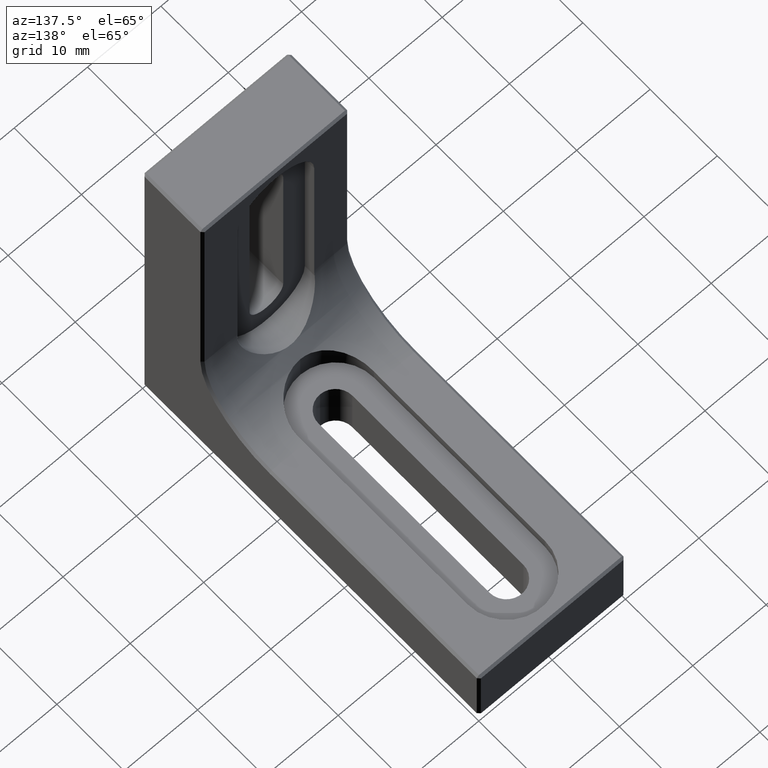
[diagram: clean part render]
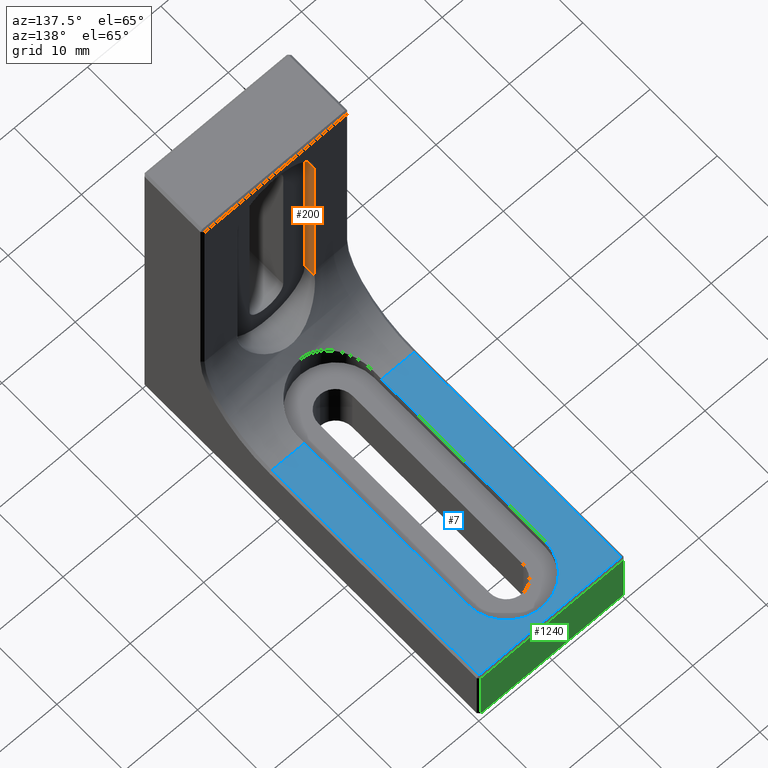
[diagram: same view with three faces highlighted in distinct colors, each labeled with its STEP entity id]
A machine part, auxiliary view with three faces highlighted in distinct colors.
Their STEP definitions:

[orange] entity #200 — the highlighted planar face has unit normal (-1, 0, 0).
#36 = VERTEX_POINT ( 'NONE', #1462 ) ;
#200 = ADVANCED_FACE ( 'NONE', ( #493 ), #1058, .F. ) ;
#219 = CARTESIAN_POINT ( 'NONE',  ( -5.250000000000000000, 7.500000000000000000, 17.78999999999999204 ) ) ;
#355 = DIRECTION ( 'NONE',  ( 1.365923996832131609E-16, 0.000000000000000000, 1.000000000000000000 ) ) ;
#385 = EDGE_LOOP ( 'NONE', ( #1031, #847, #672, #849, #1210 ) ) ;
#389 = DIRECTION ( 'NONE',  ( -0.000000000000000000, 1.000000000000000000, -0.000000000000000000 ) ) ;
#394 = CARTESIAN_POINT ( 'NONE',  ( -5.249999999999999112, 8.900000000000000355, 18.89999999999999503 ) ) ;
#447 = VECTOR ( 'NONE', #389, 1000.000000000000000 ) ;
#467 = CARTESIAN_POINT ( 'NONE',  ( -5.250000000000000000, 7.500000000000000000, 17.78999999999999204 ) ) ;
#469 = EDGE_CURVE ( 'NONE', #1029, #879, #1439, .T. ) ;
#493 = FACE_OUTER_BOUND ( 'NONE', #385, .T. ) ;
#496 = LINE ( 'NONE', #467, #827 ) ;
#513 = CARTESIAN_POINT ( 'NONE',  ( -5.249999999999997335, 8.899999999999995026, 43.18999999999999062 ) ) ;
#536 = EDGE_CURVE ( 'NONE', #879, #1291, #1346, .T. ) ;
#543 = DIRECTION ( 'NONE',  ( -1.365923996832131609E-16, 1.266221515311537557E-16, -1.000000000000000000 ) ) ;
#550 = DIRECTION ( 'NONE',  ( 1.734723475976807341E-16, 3.469446951953614978E-15, 1.000000000000000000 ) ) ;
#672 = ORIENTED_EDGE ( 'NONE', *, *, #1756, .T. ) ;
#692 = CARTESIAN_POINT ( 'NONE',  ( -5.249999999999999112, 18.89999999999999858, 18.89999999999999503 ) ) ;
#714 = VECTOR ( 'NONE', #543, 1000.000000000000000 ) ;
#747 = VERTEX_POINT ( 'NONE', #219 ) ;
#748 = CARTESIAN_POINT ( 'NONE',  ( -5.249999999999997335, 7.500000000000000000, 43.18999999999999062 ) ) ;
#764 = EDGE_CURVE ( 'NONE', #747, #1029, #496, .T. ) ;
#827 = VECTOR ( 'NONE', #887, 1000.000000000000000 ) ;
#847 = ORIENTED_EDGE ( 'NONE', *, *, #764, .F. ) ;
#849 = ORIENTED_EDGE ( 'NONE', *, *, #1147, .F. ) ;
#858 = CARTESIAN_POINT ( 'NONE',  ( -5.249999999999997335, 7.500000000000000000, 43.18999999999999062 ) ) ;
#879 = VERTEX_POINT ( 'NONE', #513 ) ;
#887 = DIRECTION ( 'NONE',  ( 1.365923996832131609E-16, 0.000000000000000000, 1.000000000000000000 ) ) ;
#935 = CARTESIAN_POINT ( 'NONE',  ( -5.250000000000000000, 7.500000000000000000, 17.78999999999999204 ) ) ;
#998 = CIRCLE ( 'NONE', #1418, 9.999999999999998224 ) ;
#1029 = VERTEX_POINT ( 'NONE', #858 ) ;
#1031 = ORIENTED_EDGE ( 'NONE', *, *, #469, .F. ) ;
#1058 = PLANE ( 'NONE',  #1757 ) ;
#1147 = EDGE_CURVE ( 'NONE', #1291, #36, #998, .T. ) ;
#1166 = DIRECTION ( 'NONE',  ( -0.000000000000000000, 1.000000000000000000, -0.000000000000000000 ) ) ;
#1210 = ORIENTED_EDGE ( 'NONE', *, *, #536, .F. ) ;
#1222 = LINE ( 'NONE', #1382, #447 ) ;
#1255 = DIRECTION ( 'NONE',  ( 1.000000000000000000, -0.000000000000000000, -1.365923996832131609E-16 ) ) ;
#1291 = VERTEX_POINT ( 'NONE', #394 ) ;
#1346 = LINE ( 'NONE', #1484, #714 ) ;
#1382 = CARTESIAN_POINT ( 'NONE',  ( -5.250000000000000000, 7.500000000000000000, 17.78999999999999204 ) ) ;
#1418 = AXIS2_PLACEMENT_3D ( 'NONE', #692, #1255, #550 ) ;
#1439 = LINE ( 'NONE', #748, #1461 ) ;
#1461 = VECTOR ( 'NONE', #1166, 1000.000000000000000 ) ;
#1462 = CARTESIAN_POINT ( 'NONE',  ( -5.249999999999999112, 8.961795936890810665, 17.78999999999999204 ) ) ;
#1484 = CARTESIAN_POINT ( 'NONE',  ( -5.250000000000000888, 8.899999999999998579, 8.899999999999996803 ) ) ;
#1505 = DIRECTION ( 'NONE',  ( -1.000000000000000000, 0.000000000000000000, 1.365923996832131609E-16 ) ) ;
#1756 = EDGE_CURVE ( 'NONE', #747, #36, #1222, .T. ) ;
#1757 = AXIS2_PLACEMENT_3D ( 'NONE', #935, #1505, #355 ) ;

[blue] entity #7 — the highlighted planar face has unit normal (0, 0, -1).
#7 = ADVANCED_FACE ( 'NONE', ( #758 ), #624, .F. ) ;
#12 = CARTESIAN_POINT ( 'NONE',  ( 5.250000000000004441, 50.00000000000000000, 8.900000000000000355 ) ) ;
#49 = DIRECTION ( 'NONE',  ( 0.000000000000000000, 1.000000000000000000, 1.266221515311537804E-16 ) ) ;
#54 = VERTEX_POINT ( 'NONE', #1470 ) ;
#77 = EDGE_CURVE ( 'NONE', #995, #1153, #91, .T. ) ;
#91 = LINE ( 'NONE', #1080, #1502 ) ;
#103 = DIRECTION ( 'NONE',  ( 0.000000000000000000, 1.000000000000000000, 0.000000000000000000 ) ) ;
#118 = LINE ( 'NONE', #1073, #631 ) ;
#125 = LINE ( 'NONE', #565, #1397 ) ;
#187 = ORIENTED_EDGE ( 'NONE', *, *, #918, .F. ) ;
#229 = CARTESIAN_POINT ( 'NONE',  ( 9.699999999999999289, 50.00000000000000000, 8.900000000000000355 ) ) ;
#278 = EDGE_CURVE ( 'NONE', #722, #626, #296, .T. ) ;
#279 = EDGE_CURVE ( 'NONE', #995, #1654, #1796, .T. ) ;
#296 = LINE ( 'NONE', #828, #1054 ) ;
#370 = CARTESIAN_POINT ( 'NONE',  ( 5.250000000000000000, 18.89999999999999858, 8.899999999999996803 ) ) ;
#387 = VERTEX_POINT ( 'NONE', #1741 ) ;
#395 = CIRCLE ( 'NONE', #598, 5.249999999999997335 ) ;
#400 = CARTESIAN_POINT ( 'NONE',  ( -5.249999999999997335, 43.18999999999999773, 8.899999999999998579 ) ) ;
#476 = ORIENTED_EDGE ( 'NONE', *, *, #1567, .T. ) ;
#495 = ORIENTED_EDGE ( 'NONE', *, *, #967, .T. ) ;
#539 = VECTOR ( 'NONE', #1642, 1000.000000000000000 ) ;
#565 = CARTESIAN_POINT ( 'NONE',  ( -5.249999999999994671, 50.00000000000000000, 8.900000000000000355 ) ) ;
#573 = DIRECTION ( 'NONE',  ( 1.365923996832131609E-16, 1.000000000000000000, 1.266221515311537804E-16 ) ) ;
#598 = AXIS2_PLACEMENT_3D ( 'NONE', #1526, #646, #103 ) ;
#623 = CARTESIAN_POINT ( 'NONE',  ( 10.00000000000000000, 49.70000000000000284, 8.900000000000000355 ) ) ;
#624 = PLANE ( 'NONE',  #1786 ) ;
#626 = VERTEX_POINT ( 'NONE', #910 ) ;
#629 = VERTEX_POINT ( 'NONE', #400 ) ;
#631 = VECTOR ( 'NONE', #673, 1000.000000000000000 ) ;
#646 = DIRECTION ( 'NONE',  ( -0.000000000000000000, -1.266221515311537804E-16, 1.000000000000000000 ) ) ;
#657 = VECTOR ( 'NONE', #1176, 1000.000000000000000 ) ;
#673 = DIRECTION ( 'NONE',  ( 0.000000000000000000, -1.000000000000000000, -1.266221515311537804E-16 ) ) ;
#722 = VERTEX_POINT ( 'NONE', #1145 ) ;
#751 = CARTESIAN_POINT ( 'NONE',  ( 9.699999999999999289, 18.89999999999999858, 8.899999999999996803 ) ) ;
#758 = FACE_OUTER_BOUND ( 'NONE', #977, .T. ) ;
#766 = LINE ( 'NONE', #623, #657 ) ;
#828 = CARTESIAN_POINT ( 'NONE',  ( 10.00000000000000000, 18.89999999999999858, 8.899999999999996803 ) ) ;
#870 = VECTOR ( 'NONE', #573, 1000.000000000000000 ) ;
#910 = CARTESIAN_POINT ( 'NONE',  ( -5.249999999999999112, 18.89999999999999858, 8.899999999999996803 ) ) ;
#918 = EDGE_CURVE ( 'NONE', #1654, #629, #395, .T. ) ;
#923 = CARTESIAN_POINT ( 'NONE',  ( 5.250000000000003553, 43.18999999999999773, 8.899999999999998579 ) ) ;
#934 = EDGE_CURVE ( 'NONE', #1153, #387, #1368, .T. ) ;
#967 = EDGE_CURVE ( 'NONE', #54, #722, #118, .T. ) ;
#977 = EDGE_LOOP ( 'NONE', ( #476, #495, #1393, #1014, #187, #1281, #1746, #1082 ) ) ;
#995 = VERTEX_POINT ( 'NONE', #370 ) ;
#1014 = ORIENTED_EDGE ( 'NONE', *, *, #1446, .F. ) ;
#1054 = VECTOR ( 'NONE', #1402, 1000.000000000000000 ) ;
#1073 = CARTESIAN_POINT ( 'NONE',  ( -9.699999999999999289, 50.00000000000000000, 8.900000000000000355 ) ) ;
#1080 = CARTESIAN_POINT ( 'NONE',  ( 10.00000000000000000, 18.89999999999999858, 8.899999999999996803 ) ) ;
#1082 = ORIENTED_EDGE ( 'NONE', *, *, #934, .T. ) ;
#1087 = DIRECTION ( 'NONE',  ( 1.000000000000000000, -0.000000000000000000, -0.000000000000000000 ) ) ;
#1121 = DIRECTION ( 'NONE',  ( -1.365923996832131609E-16, -1.000000000000000000, -1.266221515311537804E-16 ) ) ;
#1145 = CARTESIAN_POINT ( 'NONE',  ( -9.699999999999999289, 18.89999999999999858, 8.899999999999996803 ) ) ;
#1153 = VERTEX_POINT ( 'NONE', #751 ) ;
#1176 = DIRECTION ( 'NONE',  ( -1.000000000000000000, 0.000000000000000000, 0.000000000000000000 ) ) ;
#1187 = CARTESIAN_POINT ( 'NONE',  ( 10.00000000000000000, 50.00000000000000000, 8.900000000000000355 ) ) ;
#1281 = ORIENTED_EDGE ( 'NONE', *, *, #279, .F. ) ;
#1317 = DIRECTION ( 'NONE',  ( 0.000000000000000000, 1.266221515311537804E-16, -1.000000000000000000 ) ) ;
#1368 = LINE ( 'NONE', #229, #539 ) ;
#1393 = ORIENTED_EDGE ( 'NONE', *, *, #278, .T. ) ;
#1397 = VECTOR ( 'NONE', #1121, 1000.000000000000000 ) ;
#1402 = DIRECTION ( 'NONE',  ( 1.000000000000000000, -0.000000000000000000, -0.000000000000000000 ) ) ;
#1446 = EDGE_CURVE ( 'NONE', #629, #626, #125, .T. ) ;
#1470 = CARTESIAN_POINT ( 'NONE',  ( -9.699999999999999289, 49.70000000000000284, 8.900000000000000355 ) ) ;
#1502 = VECTOR ( 'NONE', #1087, 1000.000000000000000 ) ;
#1526 = CARTESIAN_POINT ( 'NONE',  ( 2.975891721928067571E-15, 43.18999999999999773, 8.899999999999998579 ) ) ;
#1567 = EDGE_CURVE ( 'NONE', #387, #54, #766, .T. ) ;
#1642 = DIRECTION ( 'NONE',  ( 0.000000000000000000, 1.000000000000000000, 1.266221515311537804E-16 ) ) ;
#1654 = VERTEX_POINT ( 'NONE', #923 ) ;
#1741 = CARTESIAN_POINT ( 'NONE',  ( 9.699999999999999289, 49.70000000000000284, 8.900000000000000355 ) ) ;
#1746 = ORIENTED_EDGE ( 'NONE', *, *, #77, .T. ) ;
#1786 = AXIS2_PLACEMENT_3D ( 'NONE', #1187, #1317, #49 ) ;
#1796 = LINE ( 'NONE', #12, #870 ) ;

[green] entity #1240 — the highlighted planar face has unit normal (0, -1, 0).
#10 = VECTOR ( 'NONE', #1813, 1000.000000000000000 ) ;
#47 = CARTESIAN_POINT ( 'NONE',  ( 9.699999999999999289, 50.00000000000000000, 0.000000000000000000 ) ) ;
#60 = DIRECTION ( 'NONE',  ( 0.000000000000000000, -1.000000000000000000, 0.000000000000000000 ) ) ;
#72 = DIRECTION ( 'NONE',  ( 1.000000000000000000, 0.000000000000000000, 0.000000000000000000 ) ) ;
#87 = CARTESIAN_POINT ( 'NONE',  ( 9.699999999999999289, 50.00000000000000000, 0.3000000000000017097 ) ) ;
#161 = VECTOR ( 'NONE', #1235, 1000.000000000000000 ) ;
#170 = EDGE_CURVE ( 'NONE', #406, #1097, #240, .T. ) ;
#240 = LINE ( 'NONE', #516, #1321 ) ;
#386 = LINE ( 'NONE', #822, #161 ) ;
#406 = VERTEX_POINT ( 'NONE', #1017 ) ;
#474 = ORIENTED_EDGE ( 'NONE', *, *, #930, .T. ) ;
#516 = CARTESIAN_POINT ( 'NONE',  ( 10.00000000000000000, 50.00000000000000000, 8.599999999999997868 ) ) ;
#548 = EDGE_CURVE ( 'NONE', #1748, #1105, #922, .T. ) ;
#625 = DIRECTION ( 'NONE',  ( 0.000000000000000000, -0.000000000000000000, -1.000000000000000000 ) ) ;
#654 = ORIENTED_EDGE ( 'NONE', *, *, #1617, .T. ) ;
#699 = CARTESIAN_POINT ( 'NONE',  ( 9.699999999999999289, 50.00000000000000000, 8.599999999999997868 ) ) ;
#822 = CARTESIAN_POINT ( 'NONE',  ( -9.699999999999999289, 50.00000000000000000, 0.000000000000000000 ) ) ;
#865 = CARTESIAN_POINT ( 'NONE',  ( -9.699999999999999289, 50.00000000000000000, 0.3000000000000017097 ) ) ;
#922 = LINE ( 'NONE', #1246, #10 ) ;
#930 = EDGE_CURVE ( 'NONE', #1105, #406, #386, .T. ) ;
#1017 = CARTESIAN_POINT ( 'NONE',  ( -9.699999999999999289, 50.00000000000000000, 8.599999999999997868 ) ) ;
#1051 = ORIENTED_EDGE ( 'NONE', *, *, #548, .T. ) ;
#1097 = VERTEX_POINT ( 'NONE', #699 ) ;
#1105 = VERTEX_POINT ( 'NONE', #865 ) ;
#1179 = CARTESIAN_POINT ( 'NONE',  ( 10.00000000000000000, 50.00000000000000000, 0.000000000000000000 ) ) ;
#1194 = ORIENTED_EDGE ( 'NONE', *, *, #170, .T. ) ;
#1235 = DIRECTION ( 'NONE',  ( 0.000000000000000000, 0.000000000000000000, 1.000000000000000000 ) ) ;
#1240 = ADVANCED_FACE ( 'NONE', ( #1727 ), #1605, .F. ) ;
#1246 = CARTESIAN_POINT ( 'NONE',  ( 10.00000000000000000, 50.00000000000000000, 0.3000000000000017097 ) ) ;
#1316 = LINE ( 'NONE', #47, #1573 ) ;
#1321 = VECTOR ( 'NONE', #72, 1000.000000000000000 ) ;
#1385 = EDGE_LOOP ( 'NONE', ( #1051, #474, #1194, #654 ) ) ;
#1573 = VECTOR ( 'NONE', #1788, 1000.000000000000000 ) ;
#1605 = PLANE ( 'NONE',  #1621 ) ;
#1617 = EDGE_CURVE ( 'NONE', #1097, #1748, #1316, .T. ) ;
#1621 = AXIS2_PLACEMENT_3D ( 'NONE', #1179, #60, #625 ) ;
#1727 = FACE_OUTER_BOUND ( 'NONE', #1385, .T. ) ;
#1748 = VERTEX_POINT ( 'NONE', #87 ) ;
#1788 = DIRECTION ( 'NONE',  ( 0.000000000000000000, 0.000000000000000000, -1.000000000000000000 ) ) ;
#1813 = DIRECTION ( 'NONE',  ( -1.000000000000000000, 0.000000000000000000, 0.000000000000000000 ) ) ;